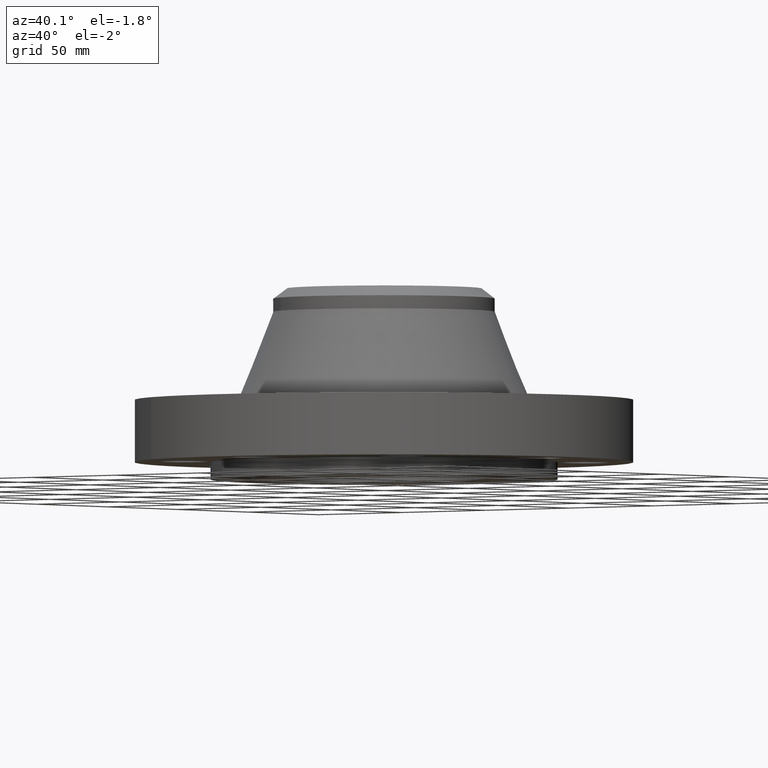
[diagram: clean part render]
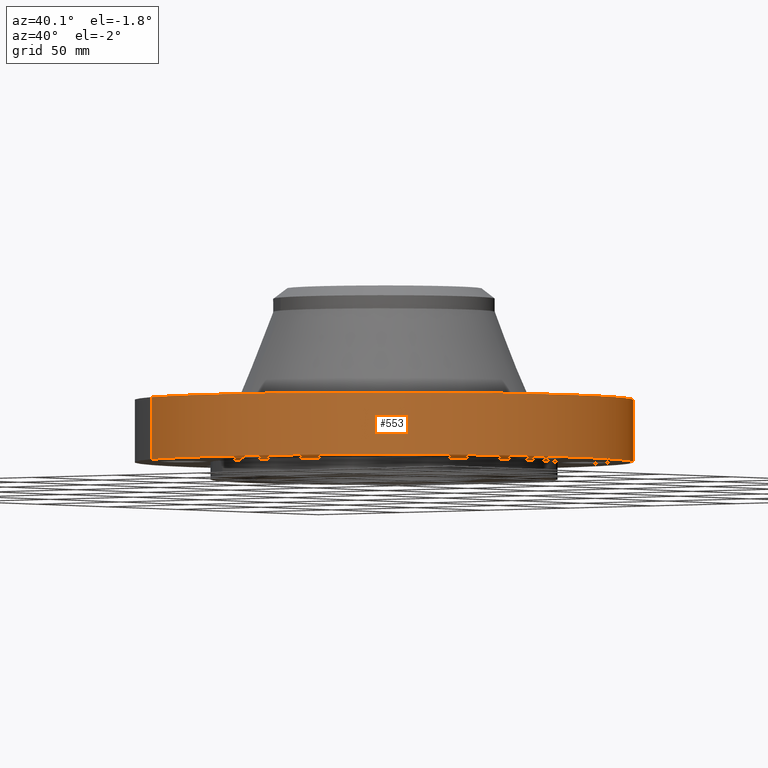
[diagram: same view with one face highlighted and labeled with its STEP entity id]
A machine part, auxiliary view. The second image highlights one B-rep face of the part: STEP entity #553.
In plain terms, the highlighted cylindrical surface (partial cylindrical patch) has radius 114.3 mm, axis along (0, 0, -1).
Its self-contained STEP definition (entity closure, byte-faithful):
#152=AXIS2_PLACEMENT_3D('Circle Axis2P3D',#150,#151,$) ;
#323=AXIS2_PLACEMENT_3D('Circle Axis2P3D',#321,#322,$) ;
#545=AXIS2_PLACEMENT_3D('Cylinder Axis2P3D',#542,#543,#544) ;
#145=CARTESIAN_POINT('Vertex',(-2.15741492373,-3.94912152852,-1.78080472503E-011)) ;
#147=CARTESIAN_POINT('Vertex',(2.15741492373,3.94912152852,-1.78080472503E-011)) ;
#150=CARTESIAN_POINT('Axis2P3D Location',(1.1189649382E-015,1.00007491352E-011,0.)) ;
#321=CARTESIAN_POINT('Axis2P3D Location',(1.1189649382E-015,-9.33216758463E-012,1.12)) ;
#325=CARTESIAN_POINT('Vertex',(2.15741492373,3.94912152852,1.12000000001)) ;
#327=CARTESIAN_POINT('Vertex',(-2.15741492373,-3.94912152852,1.12000000001)) ;
#518=CARTESIAN_POINT('Line Origine',(-2.15741492373,-3.94912152852,0.559999999998)) ;
#523=CARTESIAN_POINT('Line Origine',(2.15741492373,3.94912152852,0.559999999998)) ;
#542=CARTESIAN_POINT('Axis2P3D Location',(0.,0.,1.40850000001)) ;
#151=DIRECTION('Axis2P3D Direction',(0.,0.,-0.0393700787402)) ;
#322=DIRECTION('Axis2P3D Direction',(0.,0.,-0.0393700787402)) ;
#519=DIRECTION('Vector Direction',(0.,0.,-0.0393700787402)) ;
#524=DIRECTION('Vector Direction',(0.,0.,-0.0393700787402)) ;
#543=DIRECTION('Axis2P3D Direction',(0.,0.,-0.0393700787402)) ;
#544=DIRECTION('Axis2P3D XDirection',(0.0188750212049,0.0345504945626,0.)) ;
#520=VECTOR('Line Direction',#519,0.0393700787402) ;
#525=VECTOR('Line Direction',#524,0.0393700787402) ;
#548=ORIENTED_EDGE('',*,*,#154,.F.) ;
#549=ORIENTED_EDGE('',*,*,#527,.T.) ;
#550=ORIENTED_EDGE('',*,*,#329,.T.) ;
#551=ORIENTED_EDGE('',*,*,#522,.F.) ;
#553=ADVANCED_FACE('PartBody',(#552),#546,.T.) ;
#153=CIRCLE('generated circle',#152,4.50000000003) ;
#324=CIRCLE('generated circle',#323,4.50000000003) ;
#546=CYLINDRICAL_SURFACE('generated cylinder',#545,4.50000000002) ;
#154=EDGE_CURVE('',#148,#146,#153,.T.) ;
#329=EDGE_CURVE('',#326,#328,#324,.T.) ;
#522=EDGE_CURVE('',#146,#328,#521,.F.) ;
#527=EDGE_CURVE('',#148,#326,#526,.F.) ;
#547=EDGE_LOOP('',(#548,#549,#550,#551)) ;
#552=FACE_OUTER_BOUND('',#547,.T.) ;
#521=LINE('Line',#518,#520) ;
#526=LINE('Line',#523,#525) ;
#146=VERTEX_POINT('',#145) ;
#148=VERTEX_POINT('',#147) ;
#326=VERTEX_POINT('',#325) ;
#328=VERTEX_POINT('',#327) ;